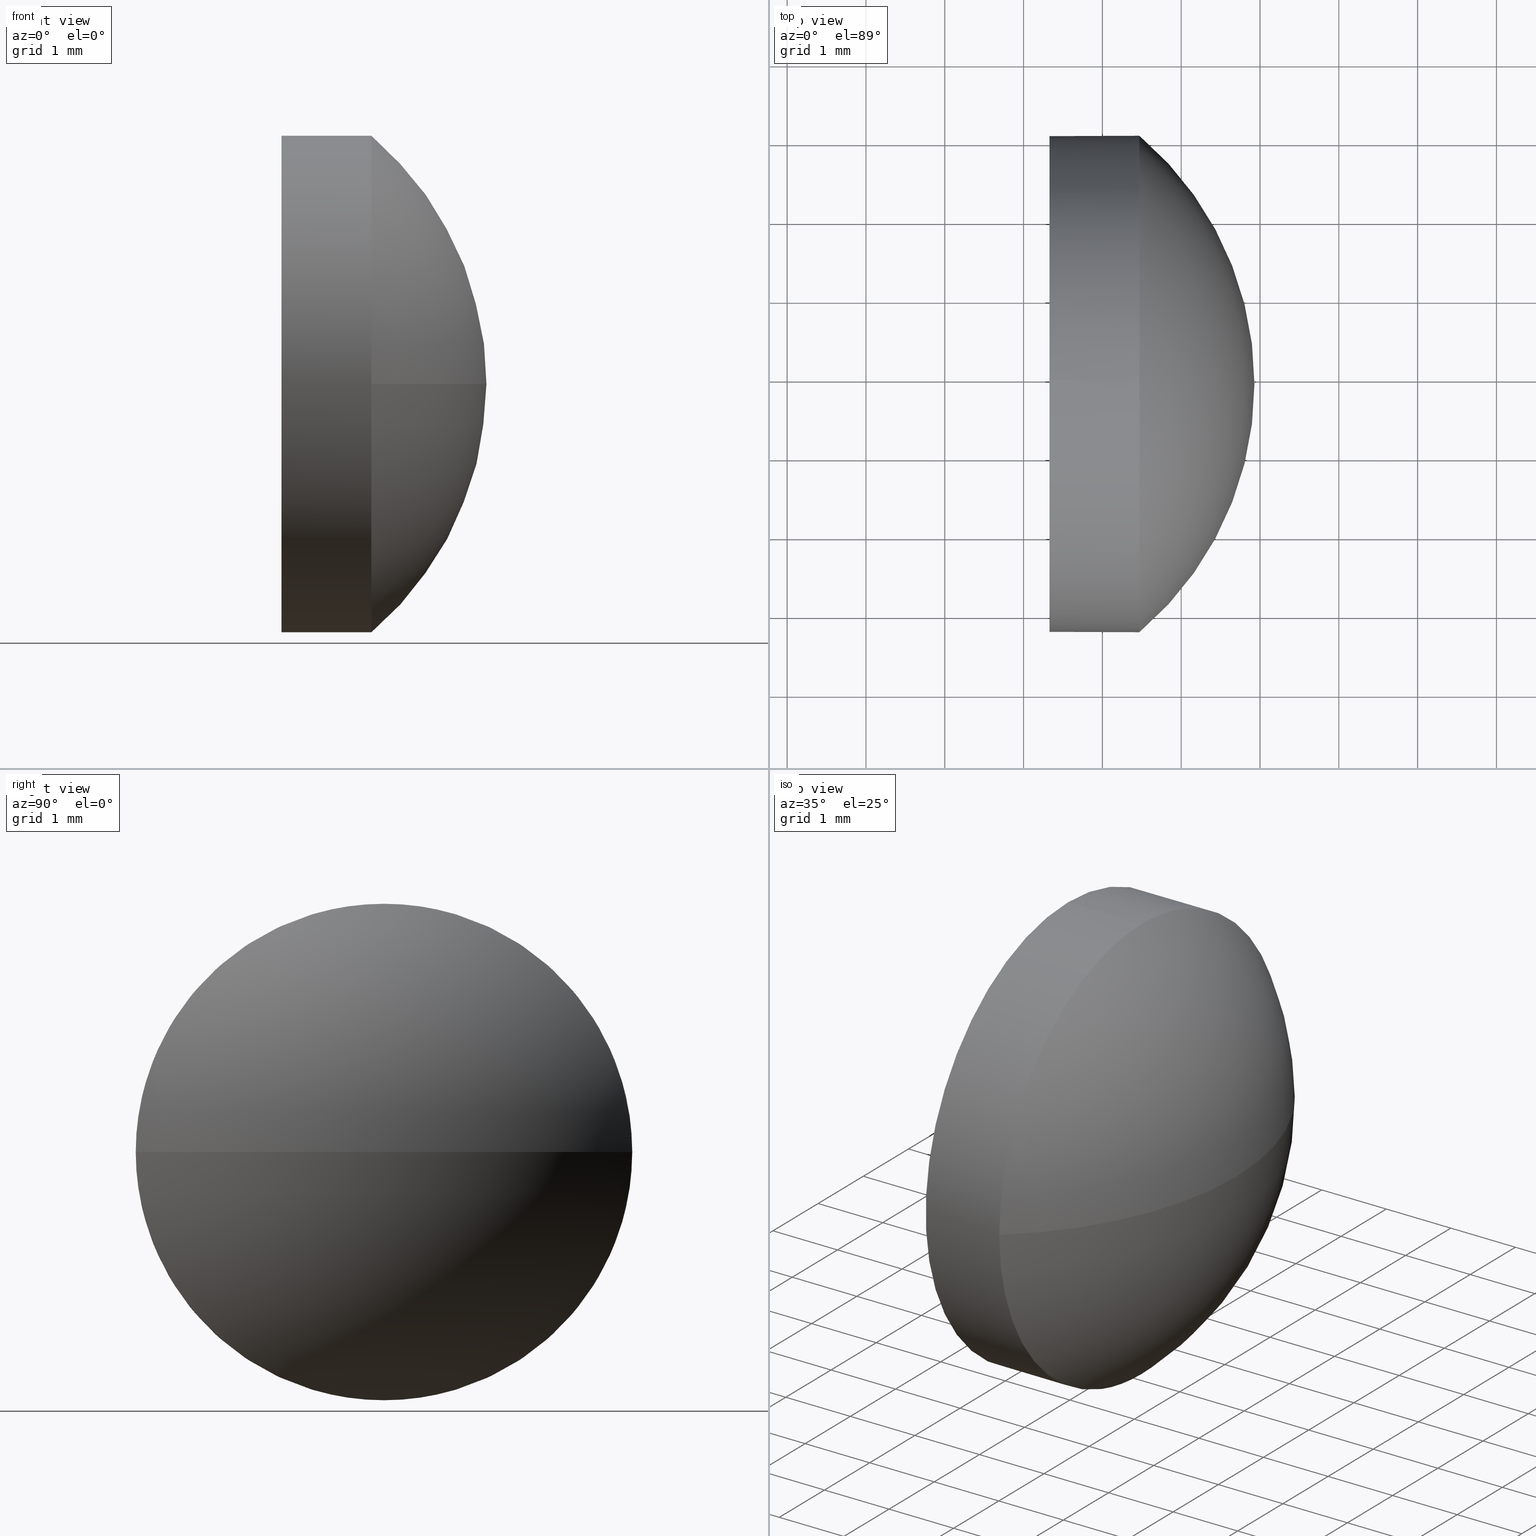
[diagram: canonical four-view strip — front | top / right | iso, engineering-drawing reading convention]
A machine part, canonical four-view strip (front | top / right | iso — engineering-drawing reading convention). The complete STEP part file that produces these views, byte-faithful:
ISO-10303-21;
HEADER;
FILE_DESCRIPTION (( 'STEP AP214' ),
    '1' );
FILE_NAME ('100092.STEP',
    '2019-05-13T05:22:52',
    ( '' ),
    ( '' ),
    'SwSTEP 2.0',
    'SolidWorks 2016',
    '' );
FILE_SCHEMA (( 'AUTOMOTIVE_DESIGN' ));
ENDSEC;

DATA;
#1 = ADVANCED_BREP_SHAPE_REPRESENTATION ( '100092', ( #42, #77 ), #83 ) ;
#2 = VERTEX_POINT ( 'NONE', #57 ) ;
#3 =( LENGTH_UNIT ( ) NAMED_UNIT ( * ) SI_UNIT ( .MILLI., .METRE. ) );
#4 = DIRECTION ( 'NONE',  ( 0.0000000000000000000, 0.0000000000000000000, -1.000000000000000000 ) ) ;
#5 = DIRECTION ( 'NONE',  ( -1.000000000000000000, -0.0000000000000000000, -0.0000000000000000000 ) ) ;
#6 = EDGE_CURVE ( 'NONE', #120, #11, #113, .T. ) ;
#7 = CARTESIAN_POINT ( 'NONE',  ( 430.3296963031011700, 112.9186759989569300, -3.150000000000013700 ) ) ;
#8 = ORIENTED_EDGE ( 'NONE', *, *, #6, .T. ) ;
#9 = AXIS2_PLACEMENT_3D ( 'NONE', #94, #117, #145 ) ;
#10 = CYLINDRICAL_SURFACE ( 'NONE', #110, 3.150000000000013700 ) ;
#11 = VERTEX_POINT ( 'NONE', #88 ) ;
#12 = VERTEX_POINT ( 'NONE', #44 ) ;
#13 =( GEOMETRIC_REPRESENTATION_CONTEXT ( 3 ) GLOBAL_UNCERTAINTY_ASSIGNED_CONTEXT ( ( #114 ) ) GLOBAL_UNIT_ASSIGNED_CONTEXT ( ( #3, #140, #17 ) ) REPRESENTATION_CONTEXT ( 'NONE', 'WORKASPACE' ) );
#14 = VECTOR ( 'NONE', #18, 1000.000000000000000 ) ;
#15 = EDGE_LOOP ( 'NONE', ( #38, #8, #122, #82 ) ) ;
#16 = CARTESIAN_POINT ( 'NONE',  ( 430.3296963031011700, 112.9186759989569300, 0.0000000000000000000 ) ) ;
#17 =( NAMED_UNIT ( * ) SI_UNIT ( $, .STERADIAN. ) SOLID_ANGLE_UNIT ( ) );
#18 = DIRECTION ( 'NONE',  ( -1.000000000000000000, -0.0000000000000000000, -0.0000000000000000000 ) ) ;
#19 = DIRECTION ( 'NONE',  ( 0.0000000000000000000, 0.0000000000000000000, 1.000000000000000000 ) ) ;
#20 = DIRECTION ( 'NONE',  ( 1.000000000000000000, 0.0000000000000000000, 0.0000000000000000000 ) ) ;
#21 = SHAPE_DEFINITION_REPRESENTATION ( #121, #1 ) ;
#22 = ORIENTED_EDGE ( 'NONE', *, *, #182, .T. ) ;
#23 =( NAMED_UNIT ( * ) PLANE_ANGLE_UNIT ( ) SI_UNIT ( $, .RADIAN. ) );
#24 = ORIENTED_EDGE ( 'NONE', *, *, #51, .T. ) ;
#25 = AXIS2_PLACEMENT_3D ( 'NONE', #157, #160, #90 ) ;
#26 = ORIENTED_EDGE ( 'NONE', *, *, #166, .T. ) ;
#27 = PRESENTATION_LAYER_ASSIGNMENT (  '', '', ( #70 ) ) ;
#28 = PRODUCT_DEFINITION ( 'δ֪', '', #68, #79 ) ;
#29 = DIRECTION ( 'NONE',  ( -1.000000000000000000, -0.0000000000000000000, -0.0000000000000000000 ) ) ;
#30 = MECHANICAL_DESIGN_GEOMETRIC_PRESENTATION_REPRESENTATION (  '', ( #156 ), #40 ) ;
#31 = DIRECTION ( 'NONE',  ( 1.000000000000000000, 0.0000000000000000000, 0.0000000000000000000 ) ) ;
#32 = APPLICATION_CONTEXT ( 'automotive_design' ) ;
#33 = DIRECTION ( 'NONE',  ( 0.0000000000000000000, 0.0000000000000000000, 1.000000000000000000 ) ) ;
#34 = EDGE_LOOP ( 'NONE', ( #56, #106 ) ) ;
#35 = APPLICATION_PROTOCOL_DEFINITION ( 'draft international standard', 'automotive_design', 1998, #81 ) ;
#36 = LINE ( 'NONE', #116, #99 ) ;
#37 = ORIENTED_EDGE ( 'NONE', *, *, #184, .T. ) ;
#38 = ORIENTED_EDGE ( 'NONE', *, *, #101, .F. ) ;
#39 = PRODUCT ( '100092', '100092', '', ( #78 ) ) ;
#40 =( GEOMETRIC_REPRESENTATION_CONTEXT ( 3 ) GLOBAL_UNCERTAINTY_ASSIGNED_CONTEXT ( ( #181 ) ) GLOBAL_UNIT_ASSIGNED_CONTEXT ( ( #164, #23, #61 ) ) REPRESENTATION_CONTEXT ( 'NONE', 'WORKASPACE' ) );
#41 = FILL_AREA_STYLE ('',( #126 ) ) ;
#42 = MANIFOLD_SOLID_BREP ( '��ת1', #142 ) ;
#43 = SURFACE_SIDE_STYLE ('',( #170 ) ) ;
#44 = CARTESIAN_POINT ( 'NONE',  ( 431.4696963031011600, 112.9186759989569300, -3.150000000000013700 ) ) ;
#45 = DIRECTION ( 'NONE',  ( -1.000000000000000000, -0.0000000000000000000, -0.0000000000000000000 ) ) ;
#46 = CARTESIAN_POINT ( 'NONE',  ( 431.4696963031011600, 112.9186759989569300, 0.0000000000000000000 ) ) ;
#47 =( NAMED_UNIT ( * ) SI_UNIT ( $, .STERADIAN. ) SOLID_ANGLE_UNIT ( ) );
#48 = VERTEX_POINT ( 'NONE', #128 ) ;
#49 = AXIS2_PLACEMENT_3D ( 'NONE', #73, #179, #100 ) ;
#50 = CARTESIAN_POINT ( 'NONE',  ( 432.9296963031012000, 112.9186759989569100, 0.0000000000000000000 ) ) ;
#51 = EDGE_CURVE ( 'NONE', #12, #153, #36, .T. ) ;
#52 = ORIENTED_EDGE ( 'NONE', *, *, #138, .T. ) ;
#53 = ADVANCED_FACE ( 'NONE', ( #129 ), #62, .T. ) ;
#54 = AXIS2_PLACEMENT_3D ( 'NONE', #92, #162, #31 ) ;
#55 = PRESENTATION_STYLE_ASSIGNMENT (( #165 ) ) ;
#56 = ORIENTED_EDGE ( 'NONE', *, *, #64, .T. ) ;
#57 = CARTESIAN_POINT ( 'NONE',  ( 431.4696963031011600, 116.0686759989569300, 0.0000000000000000000 ) ) ;
#58 = AXIS2_PLACEMENT_3D ( 'NONE', #176, #5, #19 ) ;
#59 = VERTEX_POINT ( 'NONE', #172 ) ;
#60 = FILL_AREA_STYLE ('',( #149 ) ) ;
#61 =( NAMED_UNIT ( * ) SI_UNIT ( $, .STERADIAN. ) SOLID_ANGLE_UNIT ( ) );
#62 = CYLINDRICAL_SURFACE ( 'NONE', #25, 3.150000000000013700 ) ;
#63 = ORIENTED_EDGE ( 'NONE', *, *, #6, .F. ) ;
#64 = EDGE_CURVE ( 'NONE', #59, #153, #107, .T. ) ;
#65 = SURFACE_STYLE_FILL_AREA ( #60 ) ;
#66 = AXIS2_PLACEMENT_3D ( 'NONE', #163, #75, #93 ) ;
#67 = ADVANCED_FACE ( 'NONE', ( #111 ), #169, .T. ) ;
#68 = PRODUCT_DEFINITION_FORMATION_WITH_SPECIFIED_SOURCE ( '�κ�', '', #39, .NOT_KNOWN. ) ;
#69 = CIRCLE ( 'NONE', #131, 3.150000000000013700 ) ;
#70 = STYLED_ITEM ( 'NONE', ( #168 ), #42 ) ;
#71 = CARTESIAN_POINT ( 'NONE',  ( 428.8015798647450700, 112.9186759989569100, 0.0000000000000000000 ) ) ;
#72 = DIRECTION ( 'NONE',  ( 0.0000000000000000000, 1.000000000000000000, 0.0000000000000000000 ) ) ;
#73 = CARTESIAN_POINT ( 'NONE',  ( 428.8015798647450700, 112.9186759989569100, 0.0000000000000000000 ) ) ;
#74 = SPHERICAL_SURFACE ( 'NONE', #49, 4.128116438356152600 ) ;
#75 = DIRECTION ( 'NONE',  ( -1.000000000000000000, -0.0000000000000000000, -0.0000000000000000000 ) ) ;
#76 = DIRECTION ( 'NONE',  ( 0.0000000000000000000, 0.0000000000000000000, 1.000000000000000000 ) ) ;
#77 = AXIS2_PLACEMENT_3D ( 'NONE', #105, #33, #135 ) ;
#78 = PRODUCT_CONTEXT ( 'NONE', #32, 'mechanical' ) ;
#79 = PRODUCT_DEFINITION_CONTEXT ( 'detailed design', #81, 'design' ) ;
#80 = EDGE_CURVE ( 'NONE', #48, #59, #167, .T. ) ;
#81 = APPLICATION_CONTEXT ( 'automotive_design' ) ;
#82 = ORIENTED_EDGE ( 'NONE', *, *, #182, .F. ) ;
#83 =( GEOMETRIC_REPRESENTATION_CONTEXT ( 3 ) GLOBAL_UNCERTAINTY_ASSIGNED_CONTEXT ( ( #119 ) ) GLOBAL_UNIT_ASSIGNED_CONTEXT ( ( #102, #132, #47 ) ) REPRESENTATION_CONTEXT ( 'NONE', 'WORKASPACE' ) );
#84 = FACE_OUTER_BOUND ( 'NONE', #139, .T. ) ;
#85 = ORIENTED_EDGE ( 'NONE', *, *, #80, .T. ) ;
#86 = ORIENTED_EDGE ( 'NONE', *, *, #184, .F. ) ;
#87 = ADVANCED_FACE ( 'NONE', ( #112 ), #74, .T. ) ;
#88 = CARTESIAN_POINT ( 'NONE',  ( 431.4696963031011600, 109.7686759989568900, -3.857637417314172500E-016 ) ) ;
#89 = ORIENTED_EDGE ( 'NONE', *, *, #80, .F. ) ;
#90 = DIRECTION ( 'NONE',  ( 0.0000000000000000000, 0.0000000000000000000, 1.000000000000000000 ) ) ;
#91 = DIRECTION ( 'NONE',  ( 0.0000000000000000000, 0.0000000000000000000, 1.000000000000000000 ) ) ;
#92 = CARTESIAN_POINT ( 'NONE',  ( 428.8015798647450700, 112.9186759989569100, 0.0000000000000000000 ) ) ;
#93 = DIRECTION ( 'NONE',  ( 0.0000000000000000000, 0.0000000000000000000, 1.000000000000000000 ) ) ;
#94 = CARTESIAN_POINT ( 'NONE',  ( 431.4696963031011600, 112.9186759989569300, 0.0000000000000000000 ) ) ;
#95 = AXIS2_PLACEMENT_3D ( 'NONE', #130, #133, #147 ) ;
#96 = CIRCLE ( 'NONE', #66, 3.150000000000013700 ) ;
#97 = CIRCLE ( 'NONE', #58, 3.150000000000013700 ) ;
#98 = MECHANICAL_DESIGN_GEOMETRIC_PRESENTATION_REPRESENTATION (  '', ( #70 ), #13 ) ;
#99 = VECTOR ( 'NONE', #171, 1000.000000000000000 ) ;
#100 = DIRECTION ( 'NONE',  ( 0.0000000000000000000, 1.000000000000000000, 0.0000000000000000000 ) ) ;
#101 = EDGE_CURVE ( 'NONE', #120, #2, #137, .T. ) ;
#102 =( LENGTH_UNIT ( ) NAMED_UNIT ( * ) SI_UNIT ( .MILLI., .METRE. ) );
#103 = CIRCLE ( 'NONE', #95, 3.150000000000013700 ) ;
#104 = CARTESIAN_POINT ( 'NONE',  ( 430.3296963031011700, 112.9186759989569300, 0.0000000000000000000 ) ) ;
#105 = CARTESIAN_POINT ( 'NONE',  ( 0.0000000000000000000, 0.0000000000000000000, 0.0000000000000000000 ) ) ;
#106 = ORIENTED_EDGE ( 'NONE', *, *, #123, .T. ) ;
#107 = CIRCLE ( 'NONE', #108, 3.150000000000013700 ) ;
#108 = AXIS2_PLACEMENT_3D ( 'NONE', #16, #29, #143 ) ;
#109 = ORIENTED_EDGE ( 'NONE', *, *, #64, .F. ) ;
#110 = AXIS2_PLACEMENT_3D ( 'NONE', #118, #148, #91 ) ;
#111 = FACE_OUTER_BOUND ( 'NONE', #159, .T. ) ;
#112 = FACE_OUTER_BOUND ( 'NONE', #15, .T. ) ;
#113 = CIRCLE ( 'NONE', #186, 4.128116438356157900 ) ;
#114 = UNCERTAINTY_MEASURE_WITH_UNIT (LENGTH_MEASURE( 1.000000000000000100E-005 ), #3, 'distance_accuracy_value', 'NONE');
#115 = CARTESIAN_POINT ( 'NONE',  ( 428.8015798647450700, 112.9186759989569100, 0.0000000000000000000 ) ) ;
#116 = CARTESIAN_POINT ( 'NONE',  ( 429.4680681335166800, 112.9186759989569300, -3.150000000000013700 ) ) ;
#117 = DIRECTION ( 'NONE',  ( -1.000000000000000000, -0.0000000000000000000, -0.0000000000000000000 ) ) ;
#118 = CARTESIAN_POINT ( 'NONE',  ( 429.4680681335166800, 112.9186759989569300, 0.0000000000000000000 ) ) ;
#119 = UNCERTAINTY_MEASURE_WITH_UNIT (LENGTH_MEASURE( 1.000000000000000100E-005 ), #102, 'distance_accuracy_value', 'NONE');
#120 = VERTEX_POINT ( 'NONE', #50 ) ;
#121 = PRODUCT_DEFINITION_SHAPE ( 'NONE', 'NONE',  #28 ) ;
#122 = ORIENTED_EDGE ( 'NONE', *, *, #138, .F. ) ;
#123 = EDGE_CURVE ( 'NONE', #153, #59, #97, .T. ) ;
#124 = AXIS2_PLACEMENT_3D ( 'NONE', #115, #141, #72 ) ;
#125 = AXIS2_PLACEMENT_3D ( 'NONE', #104, #20, #4 ) ;
#126 = FILL_AREA_STYLE_COLOUR ( '', #136 ) ;
#127 = SURFACE_STYLE_USAGE ( .BOTH. , #43 ) ;
#128 = CARTESIAN_POINT ( 'NONE',  ( 431.4696963031011600, 112.9186759989569300, 3.150000000000013700 ) ) ;
#129 = FACE_OUTER_BOUND ( 'NONE', #180, .T. ) ;
#130 = CARTESIAN_POINT ( 'NONE',  ( 431.4696963031011600, 112.9186759989569300, 0.0000000000000000000 ) ) ;
#131 = AXIS2_PLACEMENT_3D ( 'NONE', #46, #45, #76 ) ;
#132 =( NAMED_UNIT ( * ) PLANE_ANGLE_UNIT ( ) SI_UNIT ( $, .RADIAN. ) );
#133 = DIRECTION ( 'NONE',  ( -1.000000000000000000, -0.0000000000000000000, -0.0000000000000000000 ) ) ;
#134 = APPLICATION_PROTOCOL_DEFINITION ( 'draft international standard', 'automotive_design', 1998, #32 ) ;
#135 = DIRECTION ( 'NONE',  ( 1.000000000000000000, 0.0000000000000000000, 0.0000000000000000000 ) ) ;
#136 = COLOUR_RGB ( '',1.000000000000000000, 1.000000000000000000, 1.000000000000000000 ) ;
#137 = CIRCLE ( 'NONE', #54, 4.128116438356144600 ) ;
#138 = EDGE_CURVE ( 'NONE', #12, #11, #146, .T. ) ;
#139 = EDGE_LOOP ( 'NONE', ( #183, #52, #37, #85, #173 ) ) ;
#140 =( NAMED_UNIT ( * ) PLANE_ANGLE_UNIT ( ) SI_UNIT ( $, .RADIAN. ) );
#141 = DIRECTION ( 'NONE',  ( -0.0000000000000000000, 0.0000000000000000000, -1.000000000000000000 ) ) ;
#142 = CLOSED_SHELL ( 'NONE', ( #53, #87, #67, #155, #154 ) ) ;
#143 = DIRECTION ( 'NONE',  ( 0.0000000000000000000, 0.0000000000000000000, 1.000000000000000000 ) ) ;
#144 = PRODUCT_RELATED_PRODUCT_CATEGORY ( 'part', '', ( #39 ) ) ;
#145 = DIRECTION ( 'NONE',  ( 0.0000000000000000000, 0.0000000000000000000, 1.000000000000000000 ) ) ;
#146 = CIRCLE ( 'NONE', #9, 3.150000000000013700 ) ;
#147 = DIRECTION ( 'NONE',  ( 0.0000000000000000000, 0.0000000000000000000, 1.000000000000000000 ) ) ;
#148 = DIRECTION ( 'NONE',  ( -1.000000000000000000, -0.0000000000000000000, -0.0000000000000000000 ) ) ;
#149 = FILL_AREA_STYLE_COLOUR ( '', #158 ) ;
#150 = SURFACE_SIDE_STYLE ('',( #65 ) ) ;
#151 = ORIENTED_EDGE ( 'NONE', *, *, #101, .T. ) ;
#152 = PRESENTATION_LAYER_ASSIGNMENT (  '', '', ( #156 ) ) ;
#153 = VERTEX_POINT ( 'NONE', #7 ) ;
#154 = ADVANCED_FACE ( 'NONE', ( #177 ), #178, .F. ) ;
#155 = ADVANCED_FACE ( 'NONE', ( #84 ), #10, .T. ) ;
#156 = STYLED_ITEM ( 'NONE', ( #55 ), #1 ) ;
#157 = CARTESIAN_POINT ( 'NONE',  ( 429.4680681335166800, 112.9186759989569300, 0.0000000000000000000 ) ) ;
#158 = COLOUR_RGB ( '',1.000000000000000000, 1.000000000000000000, 1.000000000000000000 ) ;
#159 = EDGE_LOOP ( 'NONE', ( #63, #151, #161, #86 ) ) ;
#160 = DIRECTION ( 'NONE',  ( -1.000000000000000000, -0.0000000000000000000, -0.0000000000000000000 ) ) ;
#161 = ORIENTED_EDGE ( 'NONE', *, *, #166, .F. ) ;
#162 = DIRECTION ( 'NONE',  ( -0.0000000000000000000, 0.0000000000000000000, 1.000000000000000000 ) ) ;
#163 = CARTESIAN_POINT ( 'NONE',  ( 431.4696963031011600, 112.9186759989569300, 0.0000000000000000000 ) ) ;
#164 =( LENGTH_UNIT ( ) NAMED_UNIT ( * ) SI_UNIT ( .MILLI., .METRE. ) );
#165 = SURFACE_STYLE_USAGE ( .BOTH. , #150 ) ;
#166 = EDGE_CURVE ( 'NONE', #48, #2, #103, .T. ) ;
#167 = LINE ( 'NONE', #174, #14 ) ;
#168 = PRESENTATION_STYLE_ASSIGNMENT (( #127 ) ) ;
#169 = SPHERICAL_SURFACE ( 'NONE', #124, 4.128116438356152600 ) ;
#170 = SURFACE_STYLE_FILL_AREA ( #41 ) ;
#171 = DIRECTION ( 'NONE',  ( -1.000000000000000000, -0.0000000000000000000, -0.0000000000000000000 ) ) ;
#172 = CARTESIAN_POINT ( 'NONE',  ( 430.3296963031011700, 112.9186759989569300, 3.150000000000013700 ) ) ;
#173 = ORIENTED_EDGE ( 'NONE', *, *, #123, .F. ) ;
#174 = CARTESIAN_POINT ( 'NONE',  ( 429.4680681335166800, 112.9186759989569300, 3.150000000000013700 ) ) ;
#175 = DIRECTION ( 'NONE',  ( 0.0000000000000000000, 1.000000000000000000, 1.224646799147351500E-016 ) ) ;
#176 = CARTESIAN_POINT ( 'NONE',  ( 430.3296963031011700, 112.9186759989569300, 0.0000000000000000000 ) ) ;
#177 = FACE_OUTER_BOUND ( 'NONE', #34, .T. ) ;
#178 = PLANE ( 'NONE',  #125 ) ;
#179 = DIRECTION ( 'NONE',  ( -0.0000000000000000000, 0.0000000000000000000, -1.000000000000000000 ) ) ;
#180 = EDGE_LOOP ( 'NONE', ( #22, #24, #109, #89, #26 ) ) ;
#181 = UNCERTAINTY_MEASURE_WITH_UNIT (LENGTH_MEASURE( 1.000000000000000100E-005 ), #164, 'distance_accuracy_value', 'NONE');
#182 = EDGE_CURVE ( 'NONE', #2, #12, #96, .T. ) ;
#183 = ORIENTED_EDGE ( 'NONE', *, *, #51, .F. ) ;
#184 = EDGE_CURVE ( 'NONE', #11, #48, #69, .T. ) ;
#185 = DIRECTION ( 'NONE',  ( 0.0000000000000000000, 1.224646799147353200E-016, -1.000000000000000000 ) ) ;
#186 = AXIS2_PLACEMENT_3D ( 'NONE', #71, #185, #175 ) ;
ENDSEC;
END-ISO-10303-21;
